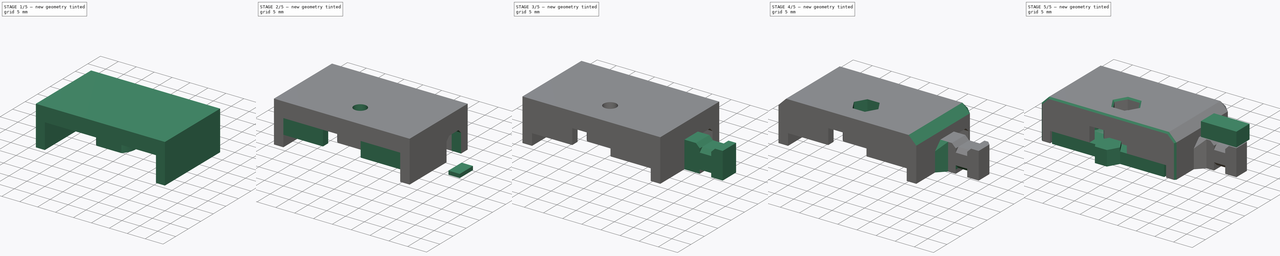
[diagram: build sequence overview — one tinted view per stage of 5, left to right]
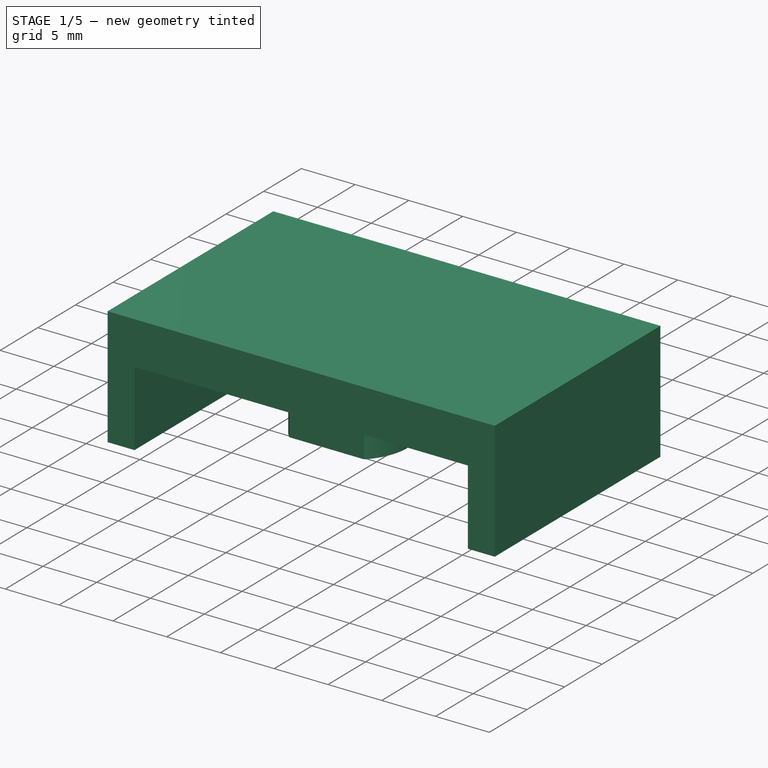
[diagram: stage 1 of 5 — iso view after this stage's code; geometry added in this stage tinted green]
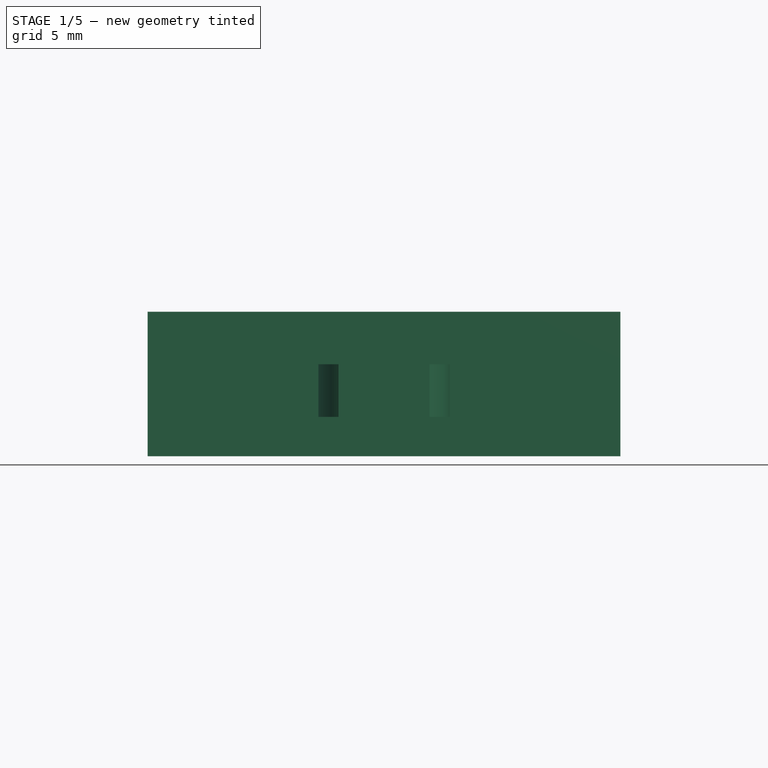
[diagram: stage 1 of 5 — front view after this stage's code; geometry added in this stage tinted green]
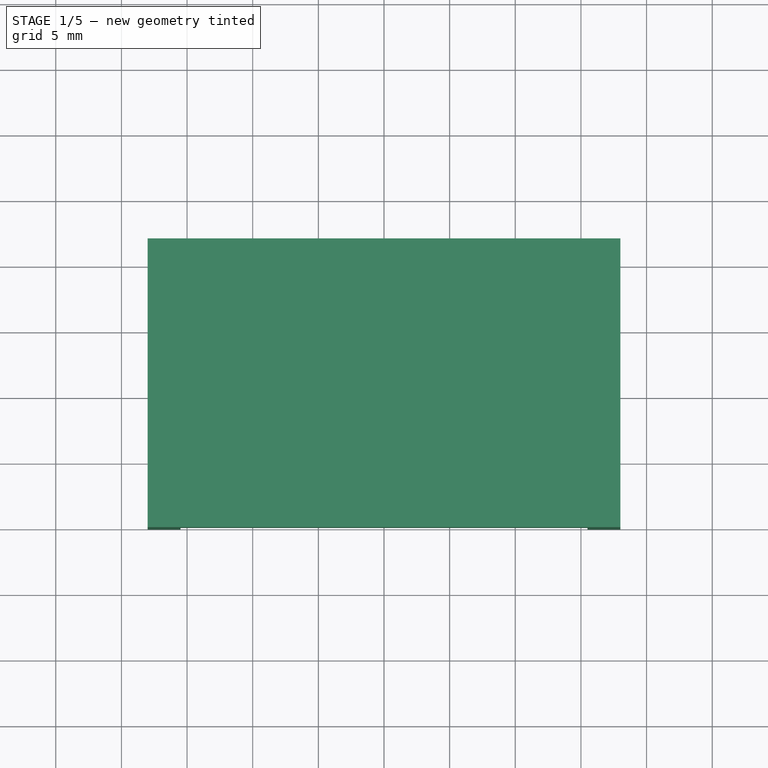
[diagram: stage 1 of 5 — top view after this stage's code; geometry added in this stage tinted green]
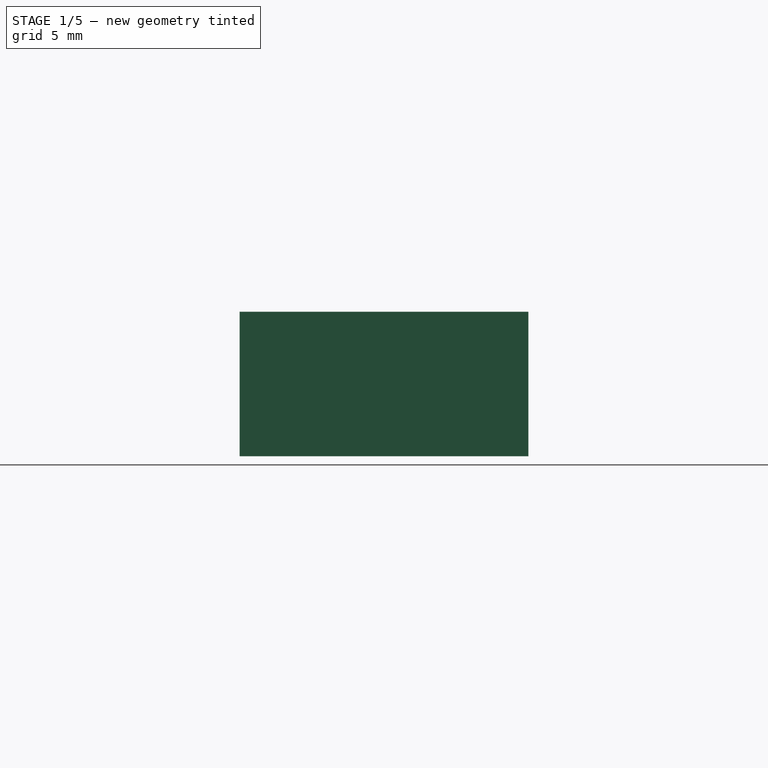
[diagram: stage 1 of 5 — right view after this stage's code; geometry added in this stage tinted green]
FCSTD DOCUMENT  (FreeCAD 0.18R14555 (Git shallow))
Label: filament-dryer-bed-power-cover
License: All rights reserved
LicenseURL: http://en.wikipedia.org/wiki/All_rights_reserved
objects: Part::Box×14, Part::Cut×11, Part::Chamfer×9, Part::Cylinder×5, Part::MultiFuse×4, Sketcher::SketchObject×1, PartDesign::Pad×1, PartDesign::Body×1, Part::Feature×1
note: 48 computed .brp shape members not serialized (recipe doc carries the construction recipe); baked Part::Feature solids carry a one-line shape summary decoded from their .brp

FEATURE [Part::Box] Box001  label="Cube001"
  AttacherType = Attacher::AttachEngine3D
  Height = 11
  Length = 36
  Placement = pos=(-18,0,0) rot=(0,0,1;0rad)
  Width = 22
FEATURE [Part::Box] Box002  label="Cube002"
  AttacherType = Attacher::AttachEngine3D
  Height = 7
  Length = 31
  Placement = pos=(-15.5,0,0) rot=(0,0,1;0rad)
  Width = 19.5
FEATURE [Part::Cylinder] Cylinder004
  Angle = 360
  AttacherType = Attacher::AttachEngine3D
  Height = 7
  Placement = pos=(0,7,3) rot=(0,0,1;0rad)
  Radius = 5
FEATURE [Part::Box] Box005  label="Cube005"
  AttacherType = Attacher::AttachEngine3D
  Height = 7
  Length = 10
  Placement = pos=(-5,0,0) rot=(0,0,1;0rad)
  Width = 3.4
FEATURE [Part::Box] Box010  label="Cube009"
  AttacherType = Attacher::AttachEngine3D
  Height = 7
  Length = 10
  Placement = pos=(-5,10.5,0) rot=(0,0,1;0rad)
  Width = 4
FEATURE [PartDesign::Body] Body
  Group = -> [Sketch,Pad]
  Origin = -> Origin
  Tip = -> Pad
FEATURE [Part::Feature] Body001
  Placement = pos=(0,7,8) rot=(0,0,1;0rad)
  shape: bbox 6.4 x 5.543 x 4 mm, 8 faces (baked)
FEATURE [Part::Cut] Cut009
  Base = -> Box001
  Tool = -> Box002
FEATURE [Part::Cut] Cut010
  Base = -> Cylinder004
  Tool = -> Box010
FEATURE [Part::Cut] Cut011
  Base = -> Cut010
  Tool = -> Box005
FEATURE [Part::MultiFuse] Fusion001
  Shapes = -> [Cut011,Cut009]
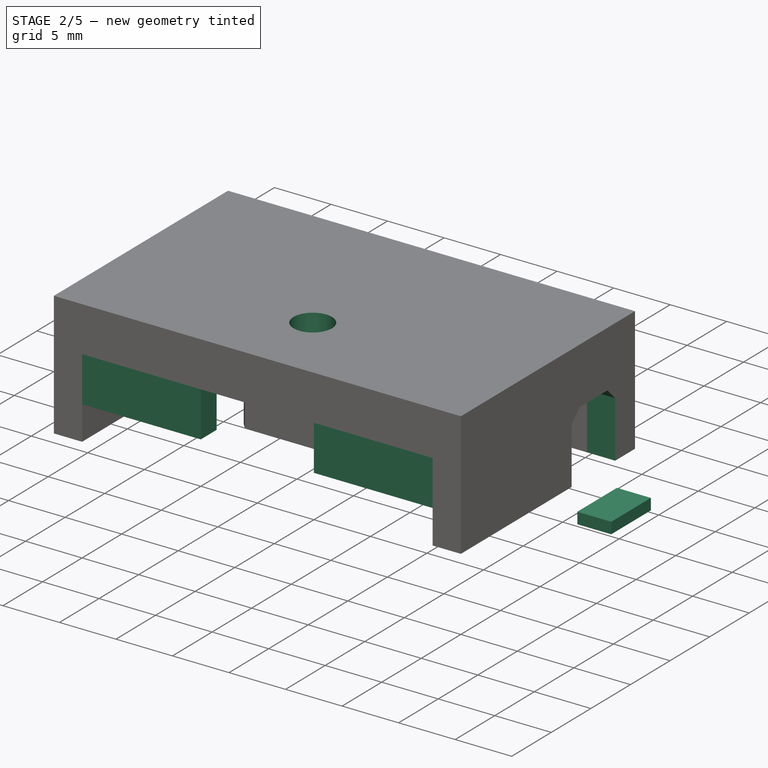
[diagram: stage 2 of 5 — iso view after this stage's code; geometry added in this stage tinted green]
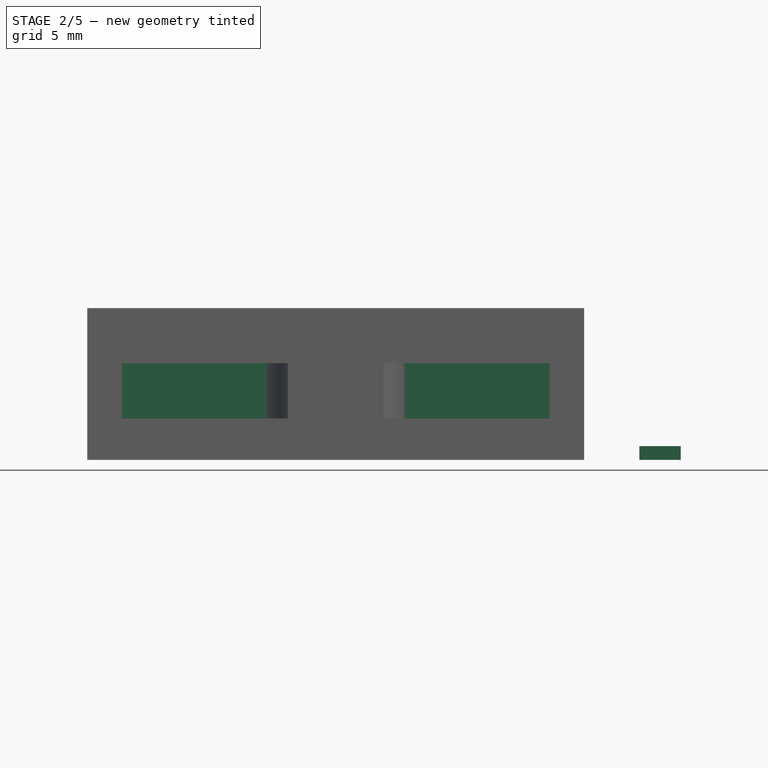
[diagram: stage 2 of 5 — front view after this stage's code; geometry added in this stage tinted green]
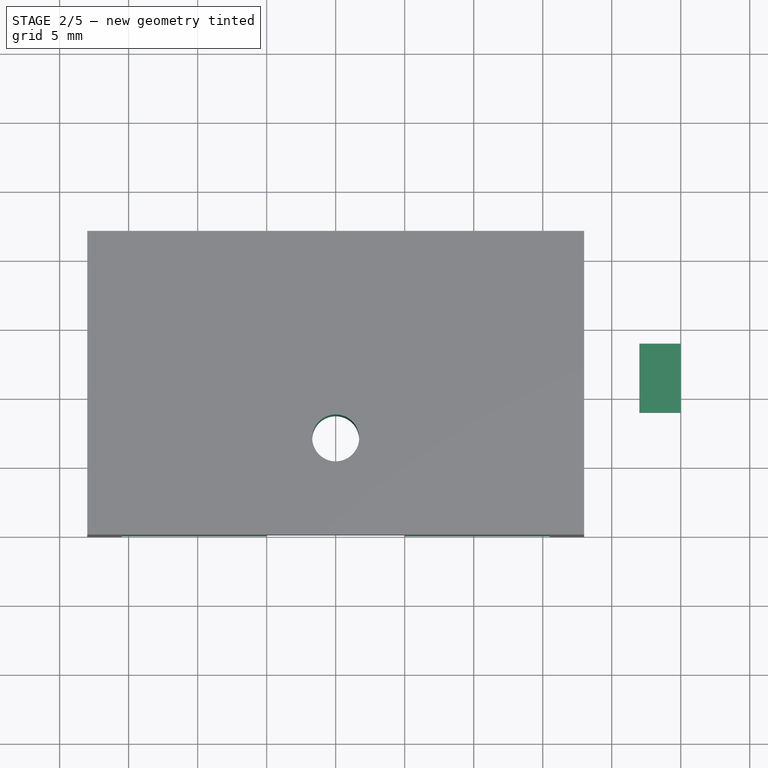
[diagram: stage 2 of 5 — top view after this stage's code; geometry added in this stage tinted green]
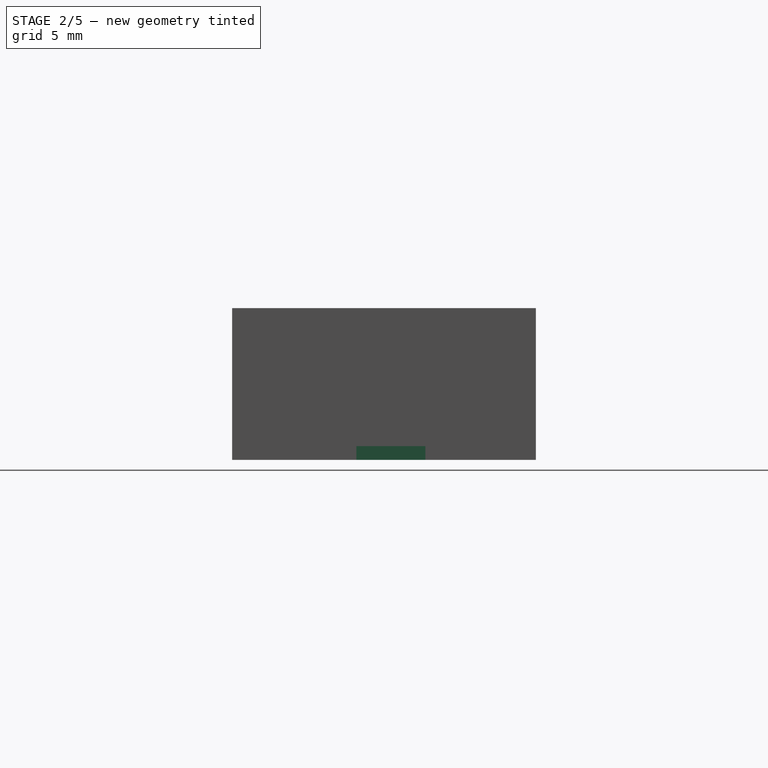
[diagram: stage 2 of 5 — right view after this stage's code; geometry added in this stage tinted green]
FEATURE [Part::Box] Box003  label="Cube003"
  AttacherType = Attacher::AttachEngine3D
  Height = 7
  Length = 10
  Placement = pos=(15,14,-1) rot=(0,0,1;0rad)
  Width = 5.5
FEATURE [Part::Cylinder] Cylinder003
  Angle = 360
  AttacherType = Attacher::AttachEngine3D
  Height = 17
  Placement = pos=(0,7,3) rot=(0,0,1;0rad)
  Radius = 1.7
FEATURE [Part::Box] Box007  label="Cube007"
  AttacherType = Attacher::AttachEngine3D
  Height = 1
  Length = 3
  Placement = pos=(22,9,0) rot=(0,0,1;0rad)
  Width = 5
FEATURE [Part::Chamfer] Chamfer010
  Base = -> Box003
  Edges = 2 edges r=1: [Edge10,Edge12]
FEATURE [Part::Box] Box011  label="Cube010"
  AttacherType = Attacher::AttachEngine3D
  Height = 4
  Length = 11
  Placement = pos=(5,0,3) rot=(0,0,1;0rad)
  Width = 2
FEATURE [Part::Box] Box012  label="Cube011"
  AttacherType = Attacher::AttachEngine3D
  Height = 4
  Length = 11
  Placement = pos=(-16,0,3) rot=(0,0,1;0rad)
  Width = 2
FEATURE [Part::Cut] Cut012
  Base = -> Fusion001
  Tool = -> Cylinder003
FEATURE [Part::MultiFuse] Fusion002
  Shapes = -> [Cut012,Box011,Box012]
FEATURE [Part::Cut] Cut013
  Base = -> Fusion002
  Tool = -> Chamfer010
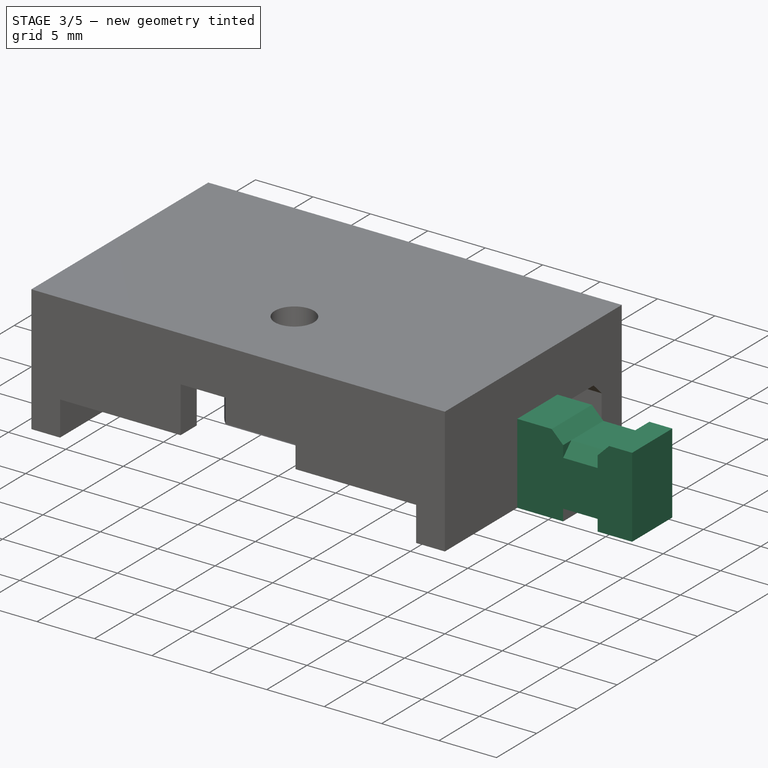
[diagram: stage 3 of 5 — iso view after this stage's code; geometry added in this stage tinted green]
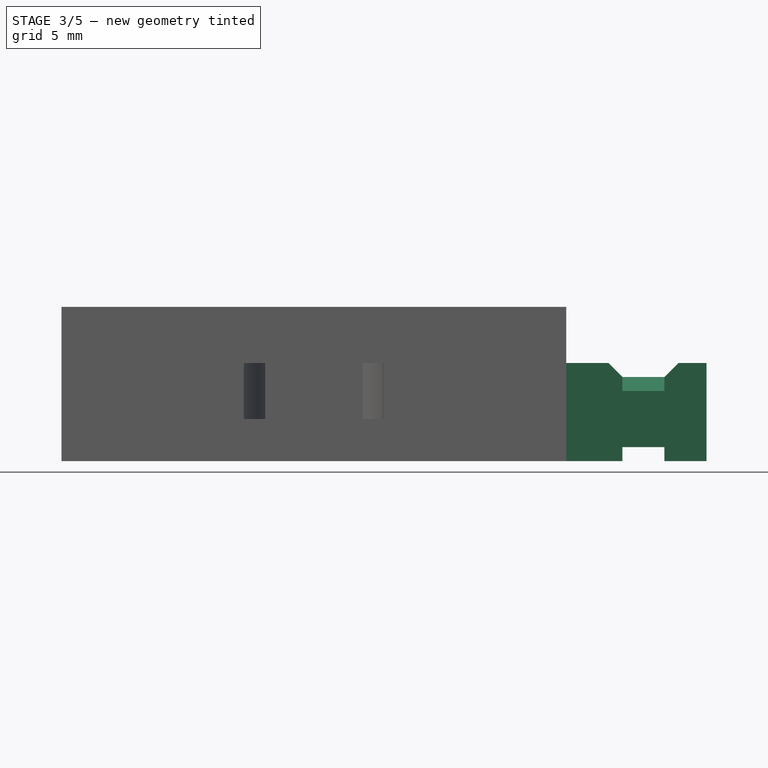
[diagram: stage 3 of 5 — front view after this stage's code; geometry added in this stage tinted green]
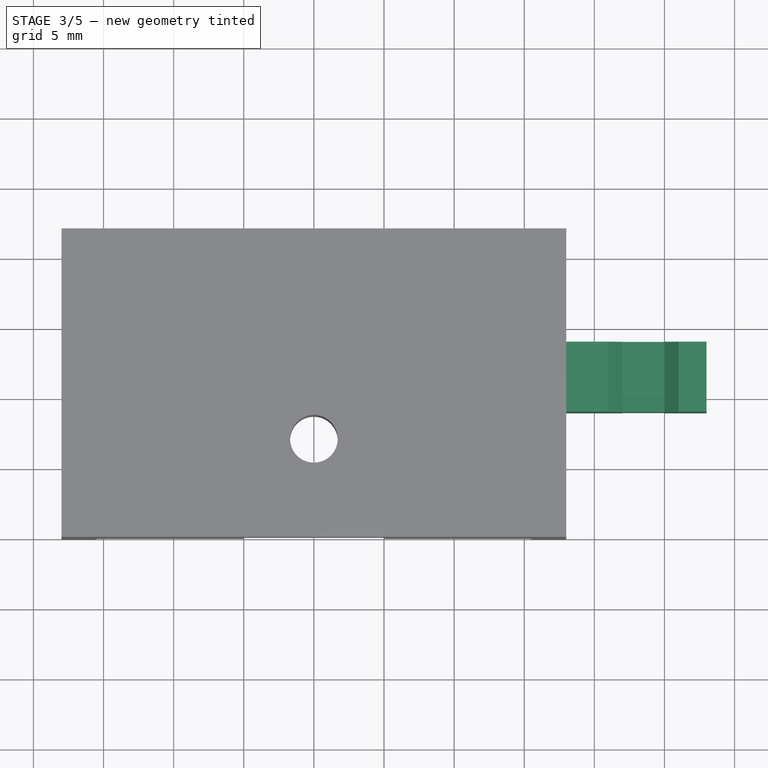
[diagram: stage 3 of 5 — top view after this stage's code; geometry added in this stage tinted green]
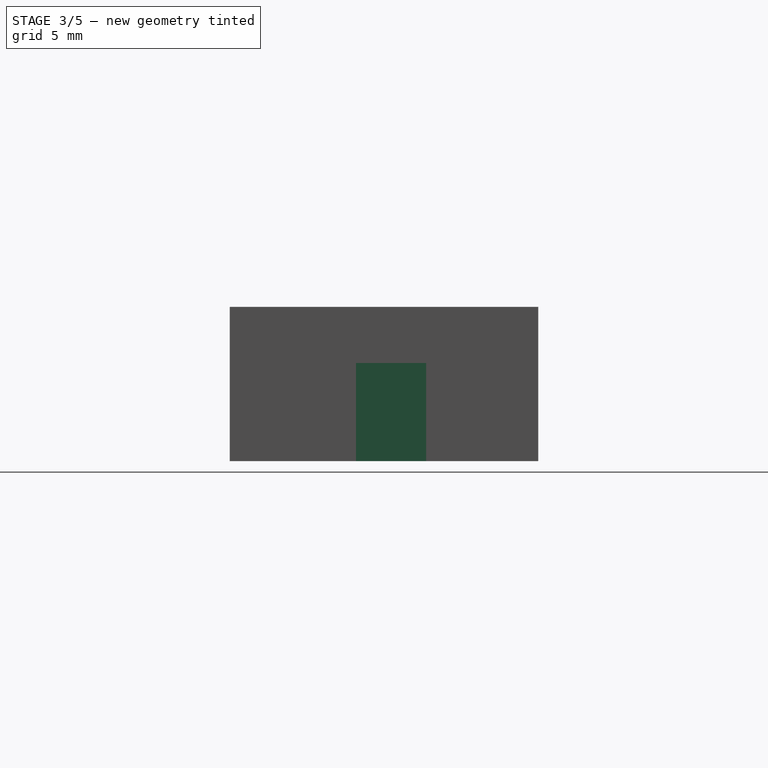
[diagram: stage 3 of 5 — right view after this stage's code; geometry added in this stage tinted green]
FEATURE [Part::Box] Box004  label="Cube004"
  AttacherType = Attacher::AttachEngine3D
  Height = 7
  Length = 10
  Placement = pos=(18,9,0) rot=(0,0,1;0rad)
  Width = 5
FEATURE [Part::Box] Box006  label="Cube006"
  AttacherType = Attacher::AttachEngine3D
  Height = 2
  Length = 5
  Placement = pos=(21,9,6) rot=(0,0,1;0rad)
  Width = 5
FEATURE [Part::Chamfer] Chamfer003
  Base = -> Box006
  Edges = 2 edges r=1: [Edge4,Edge8]
FEATURE [Part::Box] Box009  label="Cube008"
  AttacherType = Attacher::AttachEngine3D
  Height = 2
  Length = 3
  Placement = pos=(22,7,12) rot=(0,0,1;0rad)
  Width = 2
FEATURE [Part::Chamfer] Chamfer005
  Base = -> Box009
  Edges = 1 edges r=1: [Edge11]
  Placement = pos=(0,1,-7) rot=(0,0,1;0rad)
FEATURE [Part::Cut] Cut006
  Base = -> Box004
  Tool = -> Box007
FEATURE [Part::Cut] Cut007
  Base = -> Cut006
  Tool = -> Chamfer003
FEATURE [Part::Cut] Cut008
  Base = -> Cut007
  Tool = -> Chamfer005
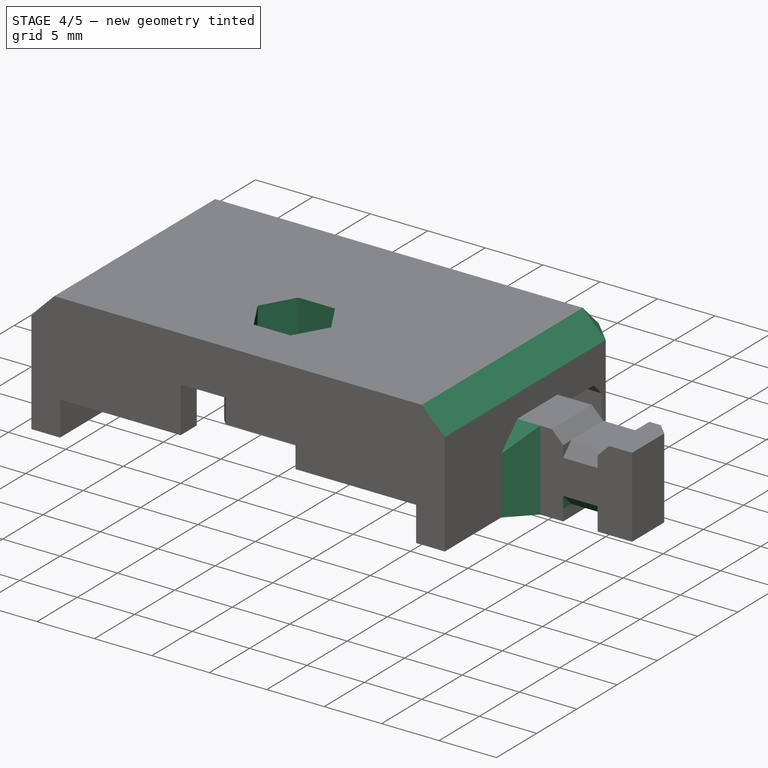
[diagram: stage 4 of 5 — iso view after this stage's code; geometry added in this stage tinted green]
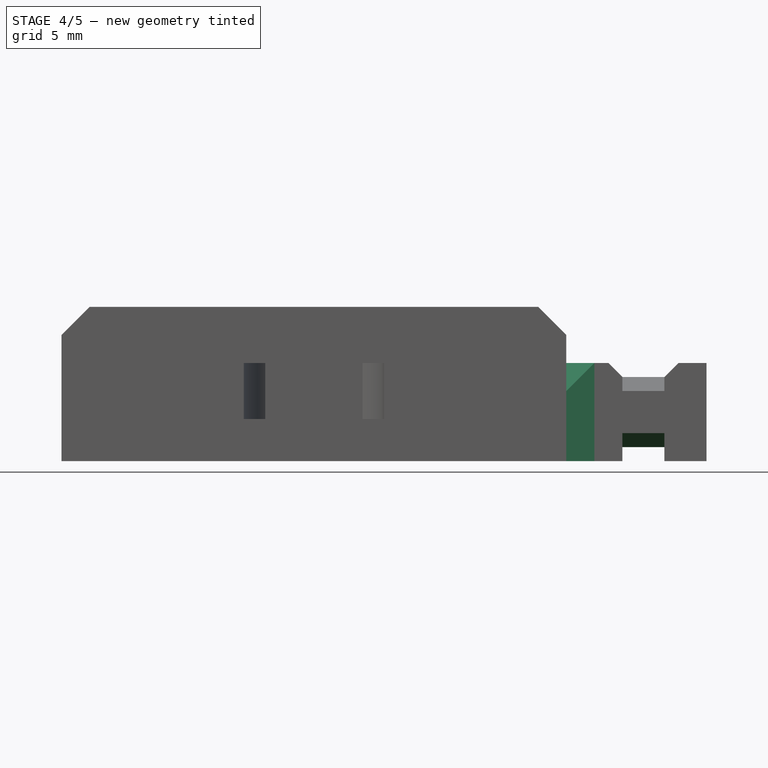
[diagram: stage 4 of 5 — front view after this stage's code; geometry added in this stage tinted green]
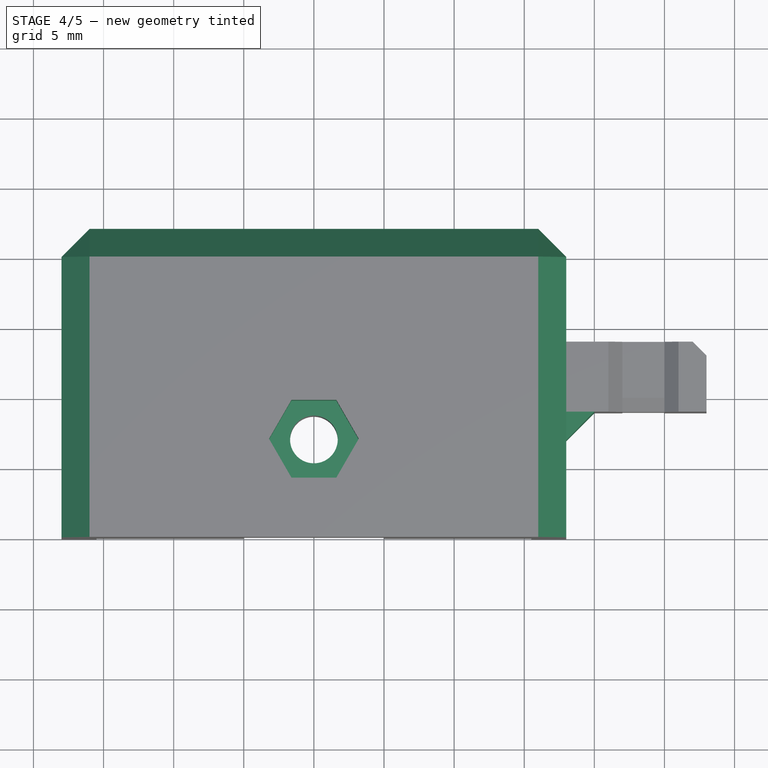
[diagram: stage 4 of 5 — top view after this stage's code; geometry added in this stage tinted green]
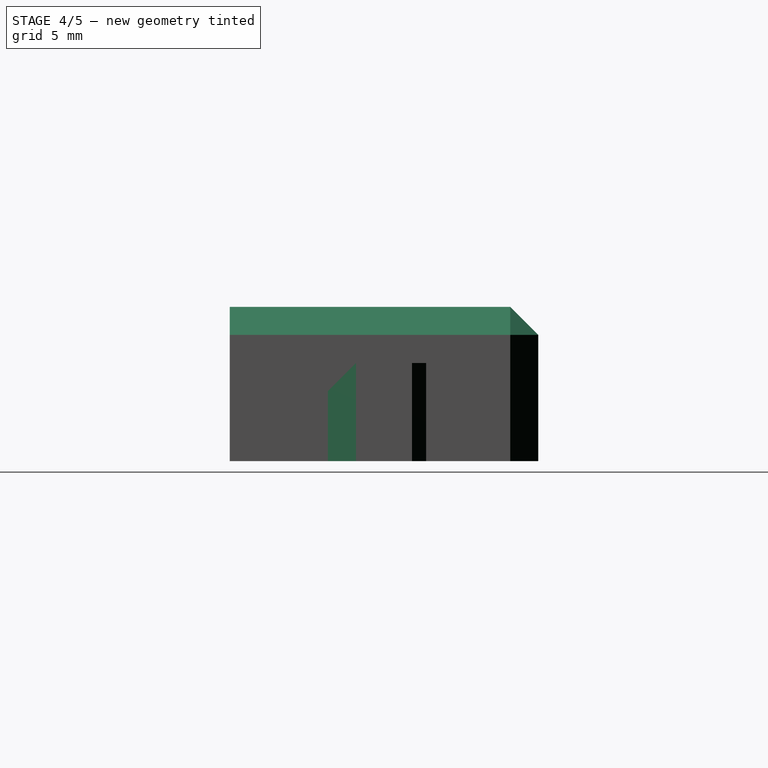
[diagram: stage 4 of 5 — right view after this stage's code; geometry added in this stage tinted green]
FEATURE [Part::Chamfer] Chamfer008
  Base = -> Cut008
  Edges = 1 edges r=1: [Edge7]
FEATURE [Part::Chamfer] Chamfer009
  Base = -> Chamfer008
  Edges = 1 edges r=1: [Edge38]
FEATURE [Part::Box] Box013  label="Cube012"
  AttacherType = Attacher::AttachEngine3D
  Height = 10
  Length = 10
  Placement = pos=(18,-1,7) rot=(0,0,1;0rad)
  Width = 10
FEATURE [Part::Chamfer] Chamfer013
  Base = -> Box013
  Edges = 1 edges r=2: [Edge11]
  Placement = pos=(0,0,-2) rot=(0,0,1;0rad)
FEATURE [Part::MultiFuse] Fusion003
  Shapes = -> [Cut013,Chamfer009]
FEATURE [Part::Chamfer] Chamfer
  Base = -> Fusion003
  Edges = 1 edges r=2: [Edge81]
FEATURE [Part::Chamfer] Chamfer014
  Base = -> Chamfer
  Edges = 5 edges r=2: [Edge10,Edge12,Edge52,Edge53,Edge56]
FEATURE [Part::Cut] Cut014
  Base = -> Chamfer014
  Tool = -> Chamfer013
FEATURE [Part::Cut] Cut015
  Base = -> Cut014
  Tool = -> Body001
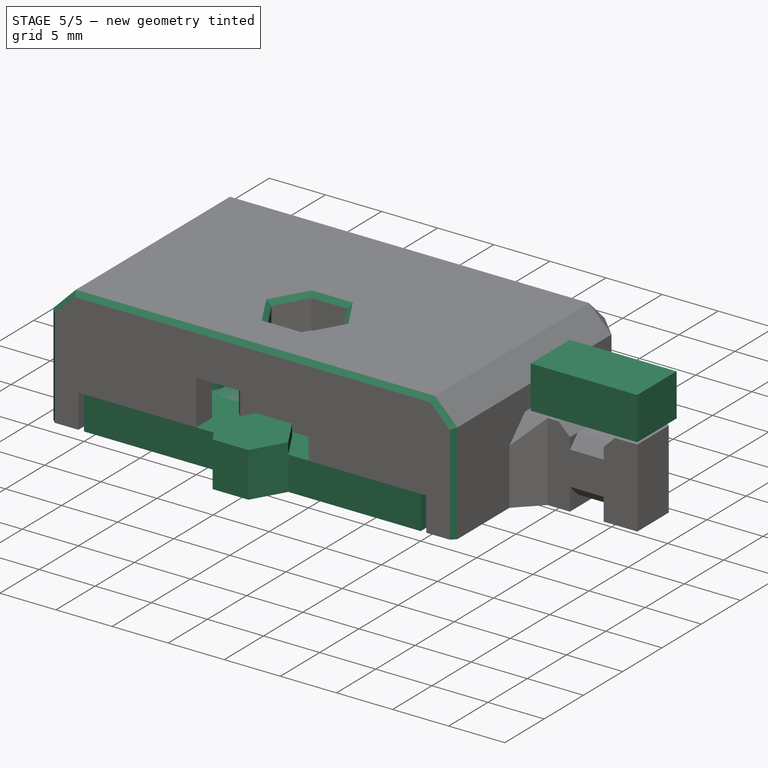
[diagram: stage 5 of 5 — iso view after this stage's code; geometry added in this stage tinted green]
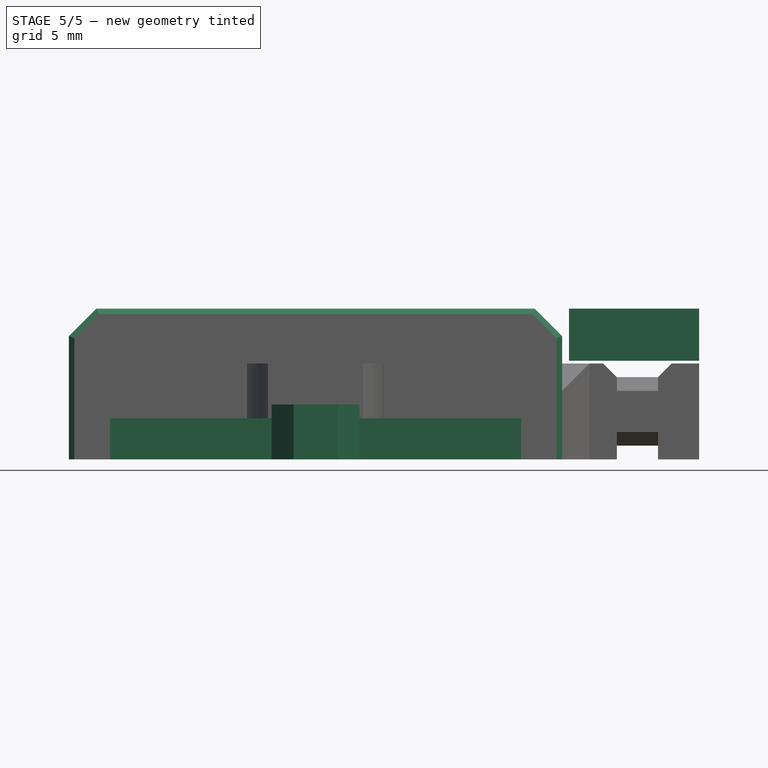
[diagram: stage 5 of 5 — front view after this stage's code; geometry added in this stage tinted green]
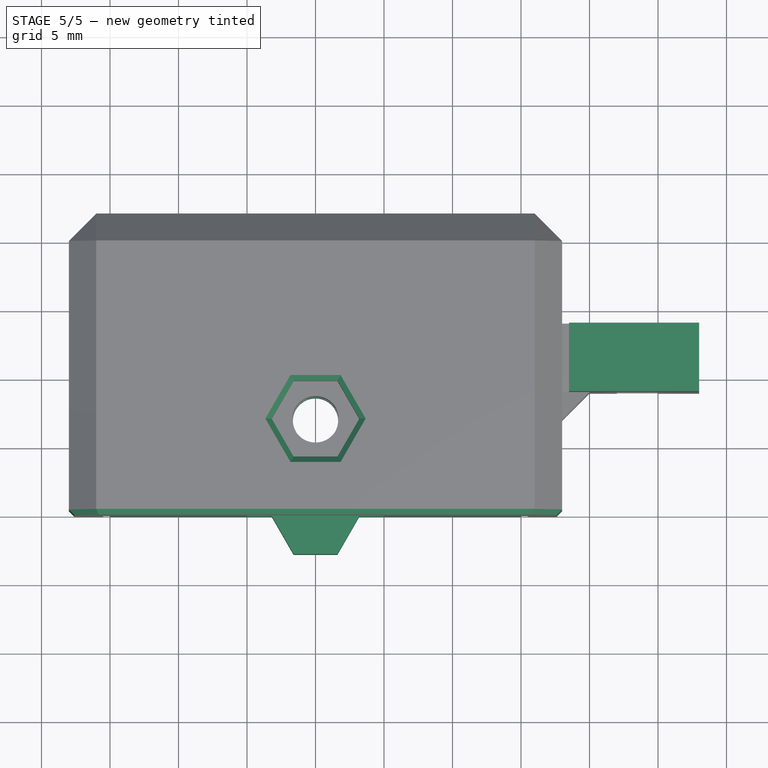
[diagram: stage 5 of 5 — top view after this stage's code; geometry added in this stage tinted green]
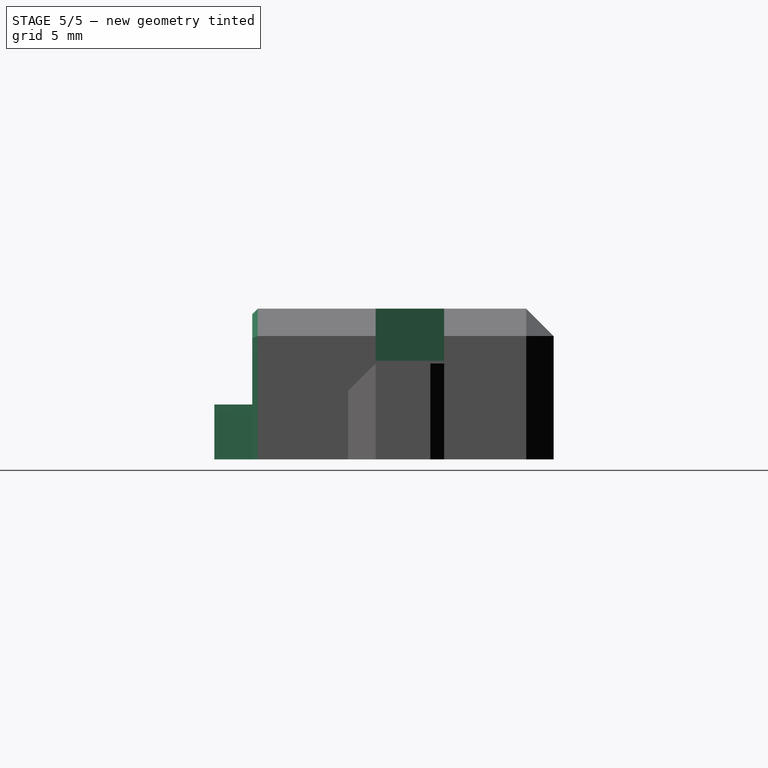
[diagram: stage 5 of 5 — right view after this stage's code; geometry added in this stage tinted green]
FEATURE [Part::Box] Box  label="Cube"
  AttacherType = Attacher::AttachEngine3D
  Height = 3
  Length = 30
  Placement = pos=(-15,0,0) rot=(0,0,1;0rad)
  Width = 14
FEATURE [Part::Cylinder] Cylinder
  Angle = 360
  AttacherType = Attacher::AttachEngine3D
  Height = 10
  Placement = pos=(0,7,0) rot=(0,0,1;0rad)
  Radius = 1.65
FEATURE [Part::Cylinder] Cylinder001
  Angle = 360
  AttacherType = Attacher::AttachEngine3D
  Height = 10
  Placement = pos=(-9,7,0) rot=(0,0,1;0rad)
  Radius = 1.65
FEATURE [Part::Cylinder] Cylinder002
  Angle = 360
  AttacherType = Attacher::AttachEngine3D
  Height = 10
  Placement = pos=(9,7,0) rot=(0,0,1;0rad)
  Radius = 1.65
FEATURE [Part::MultiFuse] Fusion
  Shapes = -> [Cylinder002,Cylinder001,Cylinder]
FEATURE [Part::Cut] Cut  label="power-connector"
  Base = -> Box
  Tool = -> Fusion
FEATURE [Part::Box] Box008  label="custom-support"
  AttacherType = Attacher::AttachEngine3D
  Height = 3.8
  Length = 9.5
  Placement = pos=(18.5,9,7.2) rot=(0,0,1;0rad)
  Width = 5
FEATURE [Sketcher::SketchObject] Sketch
  MapMode = 5
  Support = -> [XY_Plane]
  sketch-geometry (7):
    g0: LineSegment StartX=3.2 StartY=0 StartZ=0 EndX=1.6 EndY=2.77128 EndZ=0
    g1: LineSegment StartX=1.6 StartY=2.77128 StartZ=0 EndX=-1.6 EndY=2.77128 EndZ=0
    g2: LineSegment StartX=-1.6 StartY=2.77128 StartZ=0 EndX=-3.2 EndY=4e-16 EndZ=0
    g3: LineSegment StartX=-3.2 StartY=4e-16 StartZ=0 EndX=-1.6 EndY=-2.77128 EndZ=0
    g4: LineSegment StartX=-1.6 StartY=-2.77128 StartZ=0 EndX=1.6 EndY=-2.77128 EndZ=0
    g5: LineSegment StartX=1.6 StartY=-2.77128 StartZ=0 EndX=3.2 EndY=0 EndZ=0
    g6: Circle [constr] CenterX=0 CenterY=0 CenterZ=0 NormalX=0 NormalY=0 NormalZ=1 AngleXU=0 Radius=3.2
  constraints (13):
    c: Coincident(g0,g1)
    c: Coincident(g1,g2)
    c: Coincident(g2,g3)
    c: Coincident(g3,g4)
    c: Coincident(g4,g5)
    c: Coincident(g5,g0)
    c: Equal(g0, g1-g5) x5
    c: PointOnObject(g0,g6)
    c: PointOnObject(g1,g6)
    c: PointOnObject(g2,g6)
    c: PointOnObject(g3,g6)
    c: PointOnObject(g4,g6)
    c: PointOnObject(g5,g6)
FEATURE [PartDesign::Pad] Pad
  Length = 4
  Length2 = 100
  Profile = -> Sketch
  Type = 0
FEATURE [Part::Chamfer] Chamfer015
  Base = -> Cut015
  Edges = 12 edges r=0.4: [Edge1,Edge5,Edge6,Edge8,Edge10,Edge12,Edge39,Edge40,Edge41,Edge42,Edge43,Edge44]
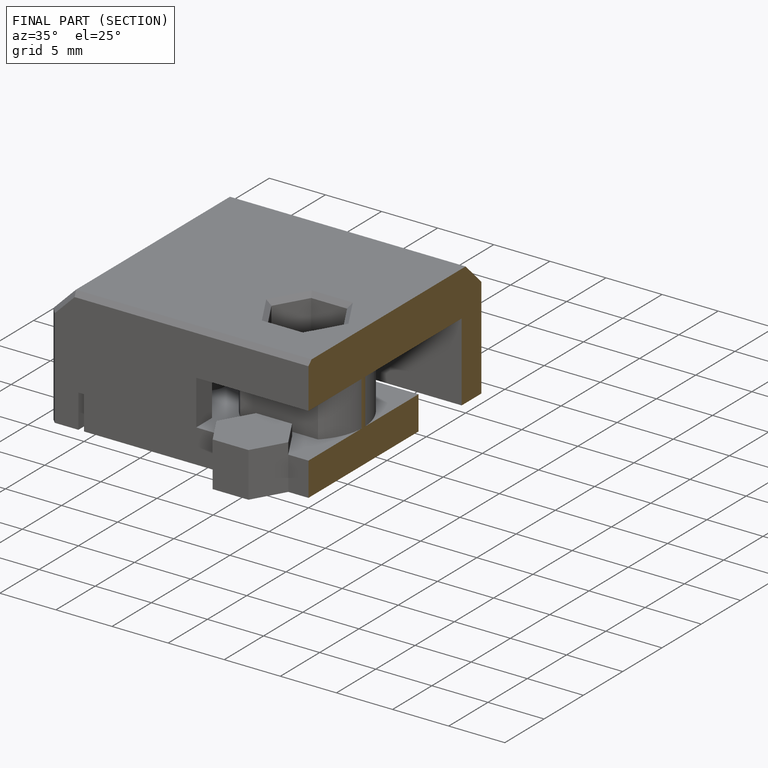
[diagram: finished part — half-section view (interior)]
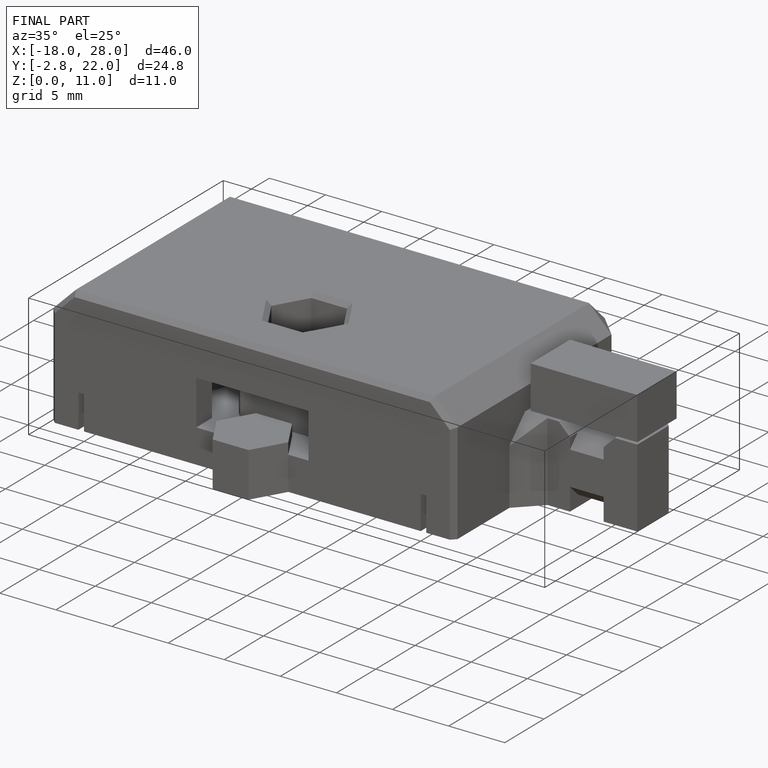
[diagram: finished part — iso view with bounding-box wireframe]
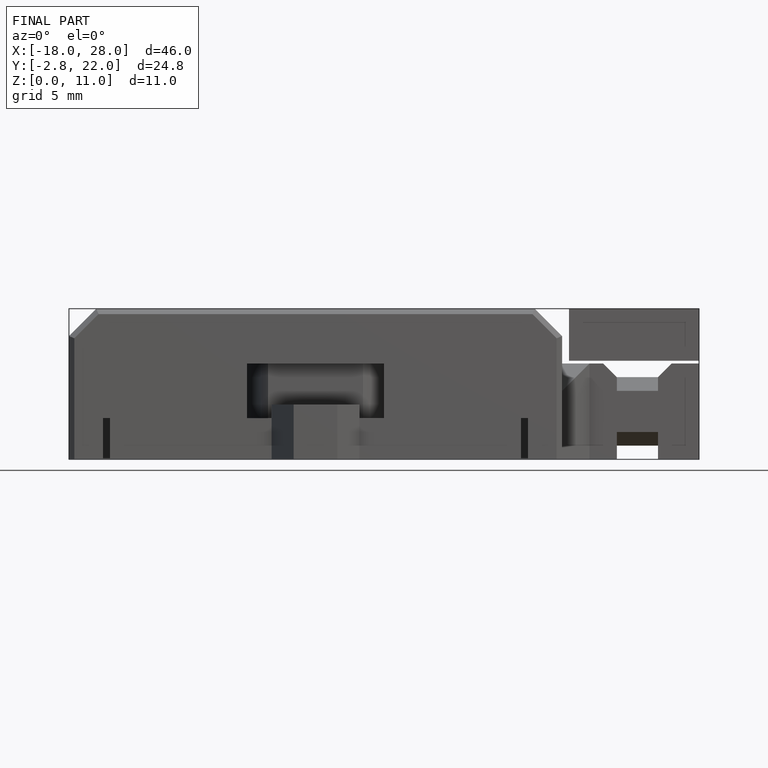
[diagram: finished part — front view with bounding-box wireframe]
